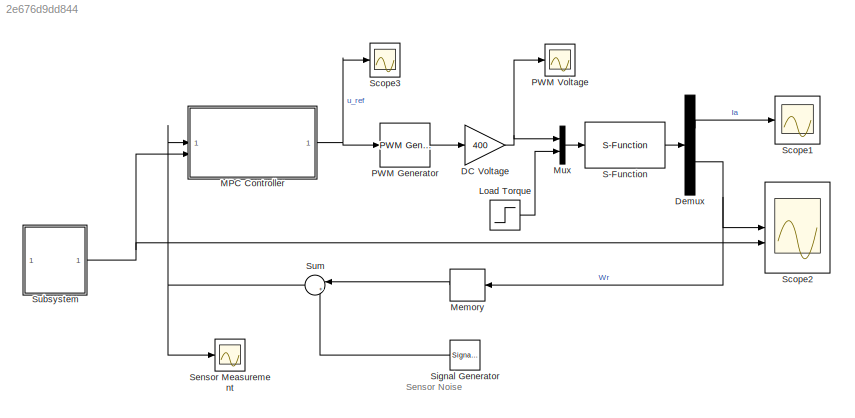
MODEL slx_2e676d9dd844
KIND model
CONFIG AbsTol = auto
CONFIG EnableMultiTasking = off
CONFIG FixedStep = 1e-4
CONFIG MaxStep = auto
CONFIG MinStep = auto
CONFIG RelTol = 1e-3
CONFIG SampleTimeConstraint = Unconstrained
CONFIG SolverName = ode45
CONFIG StartTime = 0.0
CONFIG StopTime = 2.5
BLOCK [Gain] DC Voltage
  Gain = 400
BLOCK [Demux] Demux
  Outputs = 2
BLOCK [Step] Load Torque
  After = 3
  SampleTime = 0
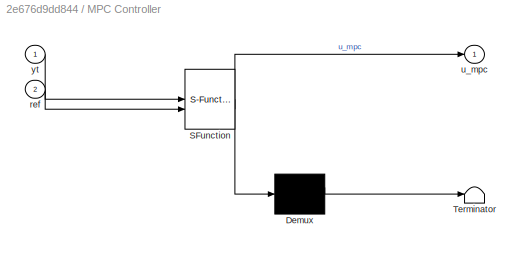
BLOCK [SubSystem] MPC Controller
  ErrorFcn = Stateflow.Translate.translate
  LibrarySourceBlock = simulink/User-Defined\nFunctions/MATLAB Function
  PermitHierarchicalResolution = ExplicitOnly
  SFBlockType = MATLAB Function
  TreatAsAtomicUnit = on
BLOCK [Demux] MPC Controller/ Demux 
  Outputs = 1
BLOCK [S-Function] MPC Controller/ SFunction 
  EnableBusSupport = on
  FunctionName = sf_sfun
  PortCounts = [2 2]
  SFcnIsStateOwnerBlock = off
  SFunctionDeploymentMode = off
  Tag = Stateflow S-Function 2
BLOCK [Terminator] MPC Controller/ Terminator 
BLOCK [Inport] MPC Controller/ref
  Port = 2
BLOCK [Outport] MPC Controller/u_mpc
BLOCK [Inport] MPC Controller/yt
BLOCK [Memory] Memory
BLOCK [Mux] Mux
  DisplayOption = bar
  Inputs = 2
BLOCK [Reference] PWM Generator  REF=eePwmGenerator/PWM Generator
  LibrarySourceBlock = ee_sl_lib/Pulse Width\nModulation/PWM Generator
  SourceBlock = eePwmGenerator/PWM Generator
  SourceType = PWM Generator
BLOCK [Scope] PWM Voltage
  Floating = off
  NumInputPorts = 1
  ScopeSpecificationString = Simulink.scopes.TimeScopeBlockCfg('CurrentConfiguration', extmgr.ConfigurationSet(extmgr.Configuration('Core','General UI',true,'FigureColor',[1 1 1]),extmgr.Configuration('Core','Source UI',true),extmgr.Configuration('Sources','WiredSimulink',true,'DataLoggingVariableName','ScopeData4'),extmgr.Configuration('Visuals','Time Domain',true,'SerializedDisplays',{struct('MinYLimReal','-50.00000','MaxYL...<+1533ch>
BLOCK [S-Function] S-Function
  EnableBusSupport = off
  FunctionName = DCMotor
  SFcnIsStateOwnerBlock = off
  SFunctionDeploymentMode = off
BLOCK [Scope] Scope1
  Floating = off
  NumInputPorts = 1
  ScopeSpecificationString = Simulink.scopes.TimeScopeBlockCfg('CurrentConfiguration', extmgr.ConfigurationSet(extmgr.Configuration('Core','General UI',true,'FigureColor',[1 1 1]),extmgr.Configuration('Core','Source UI',true),extmgr.Configuration('Sources','WiredSimulink',true,'DataLoggingVariableName','ScopeData2'),extmgr.Configuration('Visuals','Time Domain',true,'SerializedDisplays',{struct('MinYLimReal','-4.60241','MaxYLi...<+1565ch>
BLOCK [Scope] Scope2
  Floating = off
  NumInputPorts = 2
  ScopeSpecificationString = Simulink.scopes.TimeScopeBlockCfg('CurrentConfiguration', extmgr.ConfigurationSet(extmgr.Configuration('Core','General UI',true,'FigureColor',[1 1 1]),extmgr.Configuration('Core','Source UI',true),extmgr.Configuration('Sources','WiredSimulink',true,'DataLoggingVariableName','ScopeData2'),extmgr.Configuration('Visuals','Time Domain',true,'SerializedDisplays',{struct('MinYLimReal','-84.23399','MaxYL...<+1609ch>
BLOCK [Scope] Scope3
  Floating = off
  NumInputPorts = 1
  ScopeSpecificationString = Simulink.scopes.TimeScopeBlockCfg('CurrentConfiguration', extmgr.ConfigurationSet(extmgr.Configuration('Core','General UI',true,'FigureColor',[1 1 1]),extmgr.Configuration('Core','Source UI',true),extmgr.Configuration('Sources','WiredSimulink',true,'DataLoggingVariableName','ScopeData3'),extmgr.Configuration('Visuals','Time Domain',true,'SerializedDisplays',{struct('MinYLimReal','-0.11839','MaxYLi...<+1566ch>
BLOCK [Scope] Sensor Measurement
  Floating = off
  NumInputPorts = 1
  ScopeSpecificationString = Simulink.scopes.TimeScopeBlockCfg('CurrentConfiguration', extmgr.ConfigurationSet(extmgr.Configuration('Core','General UI',true,'FigureColor',[1 1 1]),extmgr.Configuration('Core','Source UI',true),extmgr.Configuration('Sources','WiredSimulink',true,'DataLoggingVariableName','ScopeData5'),extmgr.Configuration('Visuals','Time Domain',true,'SerializedDisplays',{struct('MinYLimReal','-75.01801','MaxYL...<+1526ch>
BLOCK [SignalGenerator] Signal Generator
  Amplitude = 0
  NameLocation = top
  WaveForm = random
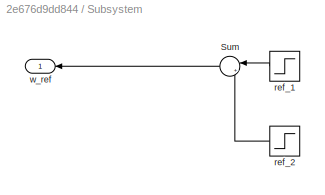
BLOCK [SubSystem] Subsystem
BLOCK [Sum] Subsystem/Sum
  Inputs = |++
  NameLocation = top
BLOCK [Step] Subsystem/ref_1
  After = 400
  NameLocation = top
  SampleTime = 0
  Time = 0.5
BLOCK [Step] Subsystem/ref_2
  After = 200
  NameLocation = top
  SampleTime = 0
  Time = 1.5
BLOCK [Outport] Subsystem/w_ref
BLOCK [Sum] Sum
  Inputs = |++
  NameLocation = top
ANNOTATION (root): Sensor Noise
NET DC Voltage:1 -> Mux:1, PWM Voltage:1
LINE Demux:1 -> Scope1:1
NET Demux:2 -> Memory:1, Scope2:1
LINE Load Torque:1 -> Mux:2
NET MPC Controller:1 -> PWM Generator:1, Scope3:1
LINE Memory:1 -> Sum:1
LINE Mux:1 -> S-Function:1
LINE PWM Generator:1 -> DC Voltage:1
LINE S-Function:1 -> Demux:1
LINE Signal Generator:1 -> Sum:2
LINE Subsystem/Sum:1 -> Subsystem/w_ref:1
LINE Subsystem/ref_1:1 -> Subsystem/Sum:1
LINE Subsystem/ref_2:1 -> Subsystem/Sum:2
NET Subsystem:1 -> MPC Controller:2, Scope2:2
NET Sum:1 -> MPC Controller:1, Sensor Measurement:1
note: NET lines group one-source signal fan-out (src -> all destinations, sorted); 1:1 wires keep LINE
CHART MPC Controller states=1 transitions=1
  STATE_LABEL 'eML_blk_kernel()'
  STATE_LABEL 'SCRIPT:\nfunction u_mpc = fcn(yt,ref)\n\n% System discrete model at Ts = 1e-4\nAd = [0.999078612745286\t-0.000105301249844195;...\n2.45332729742468e-05\t0.999999942082396];\nBd = [8.22666037703133e-05;1.00975483059156e-09];\nCd = [0 1];\nDd = [0];\n\n% Input and Output Calculation\nn=size(Ad,1);\np=size(Bd,2);\n\n% Controller and Gradient Descent Parameter\nR = 0.00002*eye(10);\nQ = 50*eye(10);\nNp = 10; % Predictio...<+1482ch>'
CHART  states=0 transitions=0
